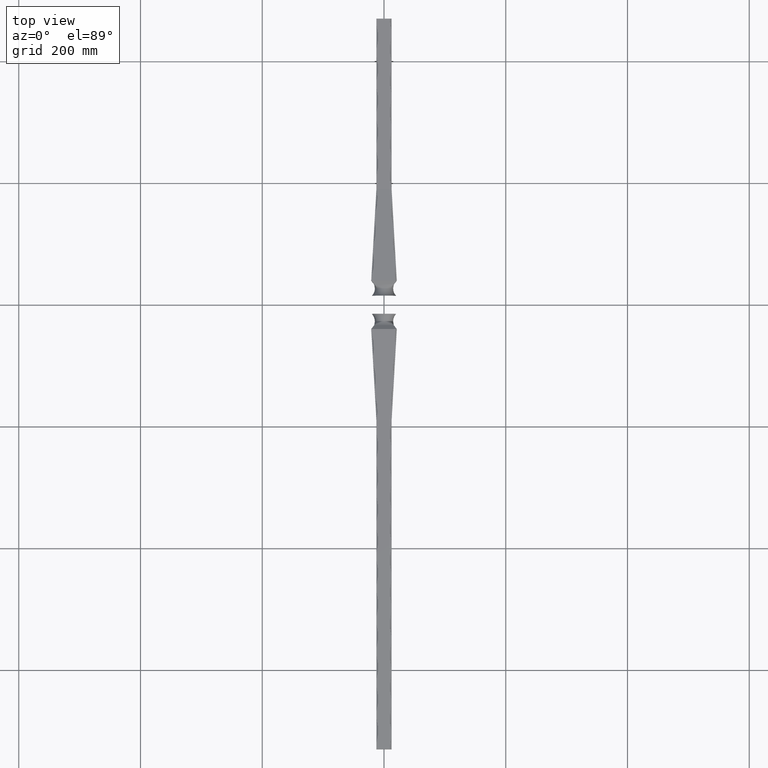
[diagram: clean part render]
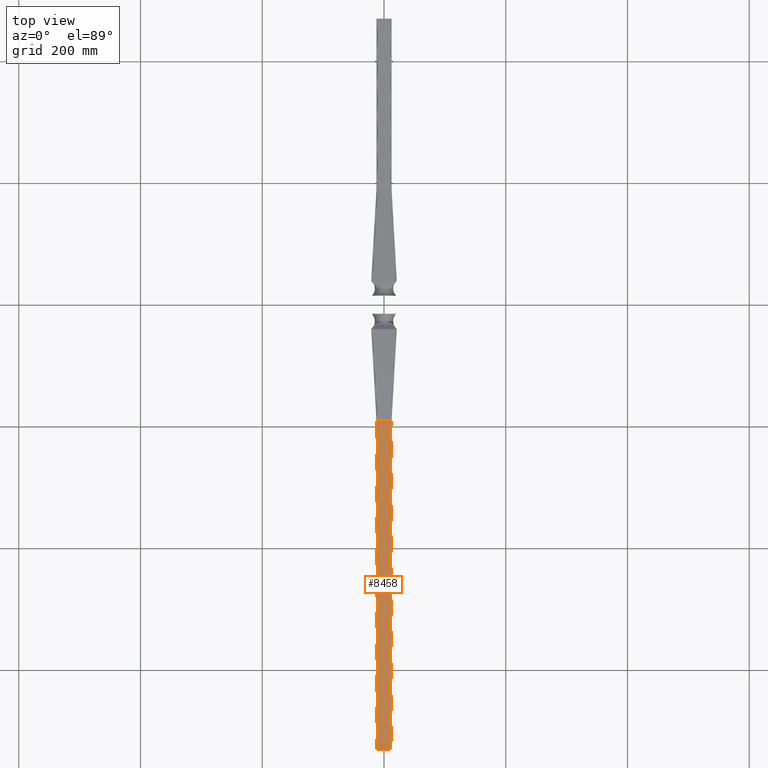
[diagram: same view with one face highlighted and labeled with its STEP entity id]
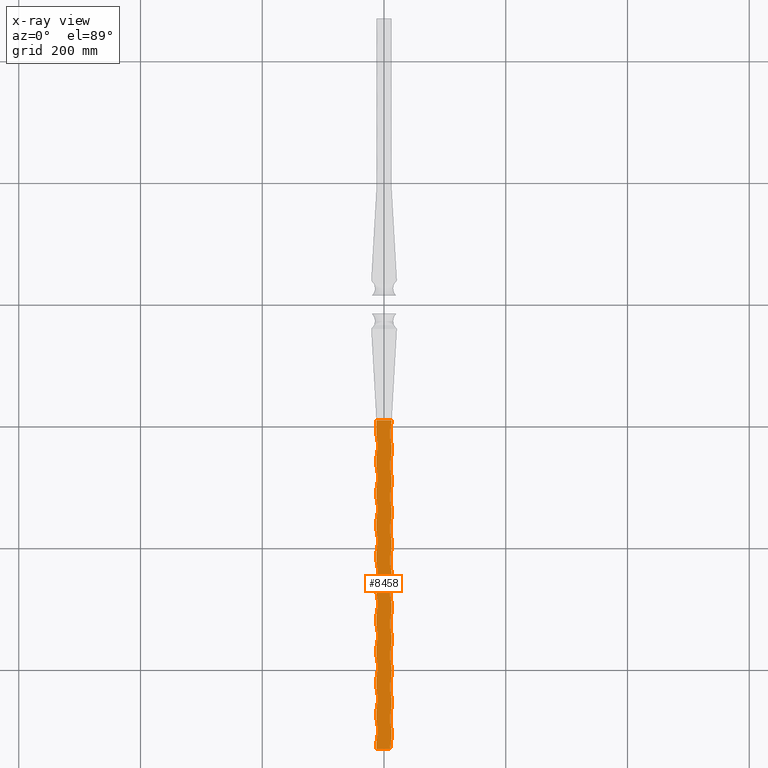
[diagram: x-ray of the same camera — body ghosted, the highlighted face saturated]
A machine part, top view. The second image highlights one B-rep face of the part: STEP entity #8458.
The next image is the same camera in x-ray: the body ghosted, the highlighted face saturated — about 0% of this face is hidden behind the body in this view.
In plain terms, the highlighted planar face has unit normal (-0, 0, -1).
Its self-contained STEP definition (entity closure, byte-faithful):
#9 = LINE ( 'NONE', #11752, #6208 ) ;
#26 = CARTESIAN_POINT ( 'NONE',  ( -12.49999999999999645, -720.0000000000000000, 12.50000000000000533 ) ) ;
#100 = EDGE_CURVE ( 'NONE', #15954, #1860, #9966, .T. ) ;
#148 = CARTESIAN_POINT ( 'NONE',  ( 12.50000000000001776, -712.0000000000000000, 12.49999999999998046 ) ) ;
#187 = LINE ( 'NONE', #9151, #12986 ) ;
#212 = EDGE_CURVE ( 'NONE', #6256, #5781, #1397, .T. ) ;
#225 = EDGE_CURVE ( 'NONE', #3206, #9755, #11658, .T. ) ;
#341 = CARTESIAN_POINT ( 'NONE',  ( 91.25000000000005684, -472.0000000000000000, 12.49999999999999822 ) ) ;
#354 = VERTEX_POINT ( 'NONE', #2924 ) ;
#394 = DIRECTION ( 'NONE',  ( -0.000000000000000000, 1.000000000000000000, -0.000000000000000000 ) ) ;
#421 = CARTESIAN_POINT ( 'NONE',  ( -12.50000000000000000, -1965.355339059327207, 12.50000000000000000 ) ) ;
#537 = VERTEX_POINT ( 'NONE', #1294 ) ;
#561 = VECTOR ( 'NONE', #5004, 1000.000000000000000 ) ;
#575 = LINE ( 'NONE', #11603, #9081 ) ;
#584 = DIRECTION ( 'NONE',  ( -0.000000000000000000, -0.000000000000000000, -1.000000000000000000 ) ) ;
#655 = CARTESIAN_POINT ( 'NONE',  ( 91.25000000000005684, -263.9999999999999432, 12.50000000000000000 ) ) ;
#702 = CIRCLE ( 'NONE', #1863, 81.24999999999997158 ) ;
#706 = DIRECTION ( 'NONE',  ( -1.000000000000000000, 0.000000000000000000, 0.000000000000000000 ) ) ;
#788 = DIRECTION ( 'NONE',  ( 0.000000000000000000, 0.000000000000000000, 1.000000000000000000 ) ) ;
#837 = LINE ( 'NONE', #1064, #12235 ) ;
#852 = ORIENTED_EDGE ( 'NONE', *, *, #14087, .T. ) ;
#859 = CARTESIAN_POINT ( 'NONE',  ( -12.49999999999999645, -679.9999999999998863, 12.50000000000000533 ) ) ;
#893 = DIRECTION ( 'NONE',  ( -1.000000000000000000, 3.416070845000482148E-15, 0.000000000000000000 ) ) ;
#906 = CARTESIAN_POINT ( 'NONE',  ( 12.50000000000000000, -1965.355339059327207, 12.50000000000000000 ) ) ;
#935 = ORIENTED_EDGE ( 'NONE', *, *, #7522, .T. ) ;
#942 = CARTESIAN_POINT ( 'NONE',  ( -12.49999999999999645, -408.0000000000003979, 12.49999999999991651 ) ) ;
#969 = ORIENTED_EDGE ( 'NONE', *, *, #6328, .T. ) ;
#1046 = CARTESIAN_POINT ( 'NONE',  ( 12.50000000000000000, -1965.355339059327207, 12.50000000000000000 ) ) ;
#1064 = CARTESIAN_POINT ( 'NONE',  ( 12.50000000000000000, -1965.355339059327207, 12.50000000000000000 ) ) ;
#1082 = CARTESIAN_POINT ( 'NONE',  ( 12.50000000000000000, -1965.355339059327207, 12.50000000000000000 ) ) ;
#1155 = VERTEX_POINT ( 'NONE', #1597 ) ;
#1159 = LINE ( 'NONE', #7810, #7934 ) ;
#1164 = DIRECTION ( 'NONE',  ( 1.000000000000000000, 0.000000000000000000, 0.000000000000000000 ) ) ;
#1219 = VERTEX_POINT ( 'NONE', #8890 ) ;
#1238 = ORIENTED_EDGE ( 'NONE', *, *, #2023, .T. ) ;
#1244 = CIRCLE ( 'NONE', #8678, 81.24999999999998579 ) ;
#1294 = CARTESIAN_POINT ( 'NONE',  ( -12.49999999999999467, -190.0000000000000853, 12.50000000000001243 ) ) ;
#1305 = VECTOR ( 'NONE', #3543, 1000.000000000000000 ) ;
#1309 = VERTEX_POINT ( 'NONE', #10400 ) ;
#1397 = LINE ( 'NONE', #11718, #14730 ) ;
#1454 = VERTEX_POINT ( 'NONE', #8063 ) ;
#1460 = CARTESIAN_POINT ( 'NONE',  ( -91.24999999999984368, -284.0000000000000000, 12.49999999999988631 ) ) ;
#1469 = CARTESIAN_POINT ( 'NONE',  ( 91.25000000000005684, -679.9999999999998863, 12.49999999999999645 ) ) ;
#1498 = VERTEX_POINT ( 'NONE', #11832 ) ;
#1503 = AXIS2_PLACEMENT_3D ( 'NONE', #7779, #584, #2966 ) ;
#1516 = DIRECTION ( 'NONE',  ( -1.000000000000000000, 0.000000000000000000, 0.000000000000000000 ) ) ;
#1531 = FACE_OUTER_BOUND ( 'NONE', #1778, .T. ) ;
#1549 = CARTESIAN_POINT ( 'NONE',  ( 12.50000000000000000, -1965.355339059327207, 12.50000000000000000 ) ) ;
#1574 = DIRECTION ( 'NONE',  ( -1.000000000000000000, 0.000000000000000000, 0.000000000000000000 ) ) ;
#1597 = CARTESIAN_POINT ( 'NONE',  ( 12.50000000000000178, -492.0000000000000000, 12.49999999999999822 ) ) ;
#1640 = CARTESIAN_POINT ( 'NONE',  ( 12.49999999999999645, -659.9999999999998863, 12.49999999999999645 ) ) ;
#1654 = EDGE_CURVE ( 'NONE', #5970, #6256, #7189, .T. ) ;
#1728 = AXIS2_PLACEMENT_3D ( 'NONE', #15685, #15788, #9497 ) ;
#1778 = EDGE_LOOP ( 'NONE', ( #13399, #5163, #4664, #12515, #10181, #15892, #11164, #3469, #3205, #4182, #3637, #11341, #6555, #14804, #7795, #15497, #10124, #15922, #3228, #2211, #15891, #8675, #14649, #4051, #12684, #2645, #10296, #935, #12134, #7915, #2659, #3155, #1238, #11791, #10194, #969, #7659, #3159, #13979, #11270, #852, #13832, #9150, #7085, #12657 ) ) ;
#1849 = CARTESIAN_POINT ( 'NONE',  ( 12.50000000000000355, -284.0000000000000000, 12.50000000000000000 ) ) ;
#1855 = DIRECTION ( 'NONE',  ( -0.000000000000000000, 1.000000000000000000, -0.000000000000000000 ) ) ;
#1860 = VERTEX_POINT ( 'NONE', #14282 ) ;
#1863 = AXIS2_PLACEMENT_3D ( 'NONE', #3092, #10609, #15554 ) ;
#1914 = EDGE_CURVE ( 'NONE', #12007, #11472, #8165, .T. ) ;
#1923 = VERTEX_POINT ( 'NONE', #15779 ) ;
#1936 = VECTOR ( 'NONE', #9509, 1000.000000000000000 ) ;
#1995 = CARTESIAN_POINT ( 'NONE',  ( 12.50000000000000000, -700.0000000000000000, 12.49999999999999645 ) ) ;
#2023 = EDGE_CURVE ( 'NONE', #15016, #5970, #187, .T. ) ;
#2211 = ORIENTED_EDGE ( 'NONE', *, *, #13486, .F. ) ;
#2301 = CARTESIAN_POINT ( 'NONE',  ( -12.49999999999999645, -252.0000000000006253, 12.49999999999987033 ) ) ;
#2315 = VERTEX_POINT ( 'NONE', #10603 ) ;
#2348 = CIRCLE ( 'NONE', #15141, 81.24999999999998579 ) ;
#2380 = CARTESIAN_POINT ( 'NONE',  ( -12.49999999999987743, -263.9999999999999432, 12.49999999999988631 ) ) ;
#2485 = CIRCLE ( 'NONE', #15048, 81.25000000000005684 ) ;
#2487 = CARTESIAN_POINT ( 'NONE',  ( 12.50000000000000000, -1965.355339059327207, 12.50000000000000000 ) ) ;
#2645 = ORIENTED_EDGE ( 'NONE', *, *, #4143, .T. ) ;
#2650 = DIRECTION ( 'NONE',  ( -1.000000000000000000, 0.000000000000000000, 0.000000000000000000 ) ) ;
#2659 = ORIENTED_EDGE ( 'NONE', *, *, #13690, .T. ) ;
#2714 = VECTOR ( 'NONE', #394, 1000.000000000000000 ) ;
#2725 = EDGE_CURVE ( 'NONE', #10695, #14837, #4698, .T. ) ;
#2726 = CIRCLE ( 'NONE', #7399, 81.24999999999998579 ) ;
#2766 = CARTESIAN_POINT ( 'NONE',  ( 12.50000000000000000, -647.9999999999998863, 12.49999999999999645 ) ) ;
#2815 = CIRCLE ( 'NONE', #10432, 81.24999999999997158 ) ;
#2913 = EDGE_CURVE ( 'NONE', #5672, #1454, #7181, .T. ) ;
#2924 = CARTESIAN_POINT ( 'NONE',  ( -12.49999999999999645, -616.0000000000001137, 12.49999999999997691 ) ) ;
#2946 = CIRCLE ( 'NONE', #6993, 81.25000000000005684 ) ;
#2966 = DIRECTION ( 'NONE',  ( -1.000000000000000000, 0.000000000000000000, 0.000000000000000000 ) ) ;
#3017 = EDGE_CURVE ( 'NONE', #14874, #1309, #1159, .T. ) ;
#3024 = CARTESIAN_POINT ( 'NONE',  ( 12.50000000000000355, -335.9999999999999432, 12.50000000000000000 ) ) ;
#3092 = CARTESIAN_POINT ( 'NONE',  ( -91.24999999999990052, -492.0000000000000000, 12.49999999999994493 ) ) ;
#3155 = ORIENTED_EDGE ( 'NONE', *, *, #13999, .T. ) ;
#3159 = ORIENTED_EDGE ( 'NONE', *, *, #15953, .T. ) ;
#3205 = ORIENTED_EDGE ( 'NONE', *, *, #14700, .F. ) ;
#3206 = VERTEX_POINT ( 'NONE', #10521 ) ;
#3209 = CIRCLE ( 'NONE', #5907, 81.25000000000005684 ) ;
#3228 = ORIENTED_EDGE ( 'NONE', *, *, #13501, .F. ) ;
#3301 = CARTESIAN_POINT ( 'NONE',  ( -12.49999999999989164, -315.9999999999999432, 12.49999999999990052 ) ) ;
#3365 = AXIS2_PLACEMENT_3D ( 'NONE', #15978, #4754, #14697 ) ;
#3396 = LINE ( 'NONE', #11671, #6667 ) ;
#3469 = ORIENTED_EDGE ( 'NONE', *, *, #4426, .F. ) ;
#3484 = CARTESIAN_POINT ( 'NONE',  ( -12.50000000000000000, -1965.355339059327207, 12.50000000000000000 ) ) ;
#3504 = CIRCLE ( 'NONE', #12364, 81.25000000000005684 ) ;
#3538 = VERTEX_POINT ( 'NONE', #9033 ) ;
#3543 = DIRECTION ( 'NONE',  ( -0.000000000000000000, 1.000000000000000000, -0.000000000000000000 ) ) ;
#3594 = CARTESIAN_POINT ( 'NONE',  ( 12.50000000000000178, -387.9999999999999432, 12.49999999999999822 ) ) ;
#3609 = LINE ( 'NONE', #15952, #4613 ) ;
#3622 = LINE ( 'NONE', #2487, #6513 ) ;
#3637 = ORIENTED_EDGE ( 'NONE', *, *, #12797, .F. ) ;
#3657 = LINE ( 'NONE', #8833, #561 ) ;
#3753 = VECTOR ( 'NONE', #9028, 1000.000000000000000 ) ;
#3775 = AXIS2_PLACEMENT_3D ( 'NONE', #14379, #4470, #6987 ) ;
#3943 = CARTESIAN_POINT ( 'NONE',  ( -12.49999999999990763, -367.9999999999999432, 12.49999999999991651 ) ) ;
#4012 = DIRECTION ( 'NONE',  ( 0.000000000000000000, 0.000000000000000000, 1.000000000000000000 ) ) ;
#4022 = VERTEX_POINT ( 'NONE', #942 ) ;
#4051 = ORIENTED_EDGE ( 'NONE', *, *, #9855, .T. ) ;
#4143 = EDGE_CURVE ( 'NONE', #15390, #14874, #8136, .T. ) ;
#4182 = ORIENTED_EDGE ( 'NONE', *, *, #225, .F. ) ;
#4322 = EDGE_CURVE ( 'NONE', #4022, #10314, #6770, .T. ) ;
#4426 = EDGE_CURVE ( 'NONE', #2315, #4022, #10846, .T. ) ;
#4470 = DIRECTION ( 'NONE',  ( 0.000000000000000000, 0.000000000000000000, 1.000000000000000000 ) ) ;
#4613 = VECTOR ( 'NONE', #1164, 1000.000000000000000 ) ;
#4645 = CARTESIAN_POINT ( 'NONE',  ( -91.24999999999991473, -543.9999999999998863, 12.49999999999996092 ) ) ;
#4656 = AXIS2_PLACEMENT_3D ( 'NONE', #4645, #4747, #7101 ) ;
#4664 = ORIENTED_EDGE ( 'NONE', *, *, #12555, .F. ) ;
#4698 = LINE ( 'NONE', #10178, #2714 ) ;
#4715 = EDGE_CURVE ( 'NONE', #6507, #15578, #3657, .T. ) ;
#4747 = DIRECTION ( 'NONE',  ( 0.000000000000000000, 0.000000000000000000, 1.000000000000000000 ) ) ;
#4754 = DIRECTION ( 'NONE',  ( -0.000000000000000000, -0.000000000000000000, -1.000000000000000000 ) ) ;
#5004 = DIRECTION ( 'NONE',  ( -0.000000000000000000, 1.000000000000000000, -0.000000000000000000 ) ) ;
#5128 = CARTESIAN_POINT ( 'NONE',  ( -12.49999999999999645, -512.0000000000003411, 12.49999999999994493 ) ) ;
#5163 = ORIENTED_EDGE ( 'NONE', *, *, #2725, .F. ) ;
#5168 = DIRECTION ( 'NONE',  ( -0.000000000000000000, 1.000000000000000000, -0.000000000000000000 ) ) ;
#5210 = VERTEX_POINT ( 'NONE', #9779 ) ;
#5257 = CARTESIAN_POINT ( 'NONE',  ( 12.50000000000000000, -1965.355339059327207, 12.50000000000000000 ) ) ;
#5289 = DIRECTION ( 'NONE',  ( -0.000000000000000000, 1.000000000000000000, -0.000000000000000000 ) ) ;
#5299 = VERTEX_POINT ( 'NONE', #9880 ) ;
#5381 = LINE ( 'NONE', #8981, #13652 ) ;
#5439 = EDGE_CURVE ( 'NONE', #12546, #12314, #575, .T. ) ;
#5464 = CIRCLE ( 'NONE', #6435, 81.24999999999998579 ) ;
#5526 = DIRECTION ( 'NONE',  ( -1.000000000000000000, 0.000000000000000000, 0.000000000000000000 ) ) ;
#5558 = AXIS2_PLACEMENT_3D ( 'NONE', #1046, #11127, #7310 ) ;
#5571 = VERTEX_POINT ( 'NONE', #15423 ) ;
#5657 = DIRECTION ( 'NONE',  ( -0.000000000000000000, 1.000000000000000000, -0.000000000000000000 ) ) ;
#5672 = VERTEX_POINT ( 'NONE', #859 ) ;
#5763 = EDGE_CURVE ( 'NONE', #15159, #3538, #837, .T. ) ;
#5781 = VERTEX_POINT ( 'NONE', #3594 ) ;
#5796 = LINE ( 'NONE', #11983, #1936 ) ;
#5901 = CIRCLE ( 'NONE', #8081, 81.24999999999998579 ) ;
#5907 = AXIS2_PLACEMENT_3D ( 'NONE', #341, #15087, #10291 ) ;
#5970 = VERTEX_POINT ( 'NONE', #10837 ) ;
#6040 = VECTOR ( 'NONE', #9748, 1000.000000000000000 ) ;
#6061 = EDGE_CURVE ( 'NONE', #1498, #14385, #9338, .T. ) ;
#6115 = EDGE_CURVE ( 'NONE', #11472, #6630, #11835, .T. ) ;
#6208 = VECTOR ( 'NONE', #5657, 1000.000000000000000 ) ;
#6256 = VERTEX_POINT ( 'NONE', #9134 ) ;
#6328 = EDGE_CURVE ( 'NONE', #5781, #10500, #2946, .T. ) ;
#6415 = VECTOR ( 'NONE', #14146, 1000.000000000000000 ) ;
#6435 = AXIS2_PLACEMENT_3D ( 'NONE', #15008, #11345, #7523 ) ;
#6507 = VERTEX_POINT ( 'NONE', #3301 ) ;
#6508 = DIRECTION ( 'NONE',  ( -0.000000000000000000, 1.000000000000000000, -0.000000000000000000 ) ) ;
#6513 = VECTOR ( 'NONE', #7505, 1000.000000000000000 ) ;
#6555 = ORIENTED_EDGE ( 'NONE', *, *, #1914, .F. ) ;
#6630 = VERTEX_POINT ( 'NONE', #5128 ) ;
#6659 = CIRCLE ( 'NONE', #10067, 81.25000000000005684 ) ;
#6667 = VECTOR ( 'NONE', #10713, 1000.000000000000000 ) ;
#6763 = DIRECTION ( 'NONE',  ( -0.000000000000000000, -0.000000000000000000, -1.000000000000000000 ) ) ;
#6768 = CARTESIAN_POINT ( 'NONE',  ( -12.49999999999995204, -523.9999999999998863, 12.49999999999996092 ) ) ;
#6770 = CIRCLE ( 'NONE', #3775, 81.25000000000000000 ) ;
#6892 = CARTESIAN_POINT ( 'NONE',  ( -12.49999999999999645, -356.0000000000004547, 12.49999999999990052 ) ) ;
#6927 = CIRCLE ( 'NONE', #1728, 81.25000000000005684 ) ;
#6987 = DIRECTION ( 'NONE',  ( -1.000000000000000000, 0.000000000000000000, 0.000000000000000000 ) ) ;
#6993 = AXIS2_PLACEMENT_3D ( 'NONE', #8176, #11723, #706 ) ;
#6997 = EDGE_CURVE ( 'NONE', #1923, #354, #9, .T. ) ;
#7085 = ORIENTED_EDGE ( 'NONE', *, *, #11318, .T. ) ;
#7101 = DIRECTION ( 'NONE',  ( -1.000000000000000000, 2.732856676000385876E-15, 0.000000000000000000 ) ) ;
#7106 = EDGE_CURVE ( 'NONE', #354, #1219, #5464, .T. ) ;
#7175 = CARTESIAN_POINT ( 'NONE',  ( -12.49999999999999645, -460.0000000000003411, 12.49999999999993072 ) ) ;
#7181 = LINE ( 'NONE', #12556, #13905 ) ;
#7189 = CIRCLE ( 'NONE', #1503, 81.25000000000005684 ) ;
#7310 = DIRECTION ( 'NONE',  ( -1.000000000000000000, 0.000000000000000000, 0.000000000000000000 ) ) ;
#7395 = DIRECTION ( 'NONE',  ( -0.000000000000000000, 1.000000000000000000, -0.000000000000000000 ) ) ;
#7399 = AXIS2_PLACEMENT_3D ( 'NONE', #8491, #14687, #8395 ) ;
#7447 = EDGE_CURVE ( 'NONE', #14837, #5210, #2726, .T. ) ;
#7452 = DIRECTION ( 'NONE',  ( -0.000000000000000000, -0.000000000000000000, -1.000000000000000000 ) ) ;
#7489 = EDGE_CURVE ( 'NONE', #5571, #15954, #9107, .T. ) ;
#7505 = DIRECTION ( 'NONE',  ( -0.000000000000000000, 1.000000000000000000, -0.000000000000000000 ) ) ;
#7522 = EDGE_CURVE ( 'NONE', #1309, #15159, #8909, .T. ) ;
#7523 = DIRECTION ( 'NONE',  ( -1.000000000000000000, 0.000000000000000000, 0.000000000000000000 ) ) ;
#7622 = AXIS2_PLACEMENT_3D ( 'NONE', #14840, #7452, #2650 ) ;
#7659 = ORIENTED_EDGE ( 'NONE', *, *, #11625, .T. ) ;
#7779 = CARTESIAN_POINT ( 'NONE',  ( 91.25000000000005684, -419.9999999999999432, 12.49999999999999822 ) ) ;
#7795 = ORIENTED_EDGE ( 'NONE', *, *, #7106, .F. ) ;
#7801 = DIRECTION ( 'NONE',  ( -0.000000000000000000, 1.000000000000000000, -0.000000000000000000 ) ) ;
#7810 = CARTESIAN_POINT ( 'NONE',  ( 12.50000000000000000, -1965.355339059327207, 12.50000000000000000 ) ) ;
#7894 = EDGE_CURVE ( 'NONE', #8299, #6507, #2348, .T. ) ;
#7915 = ORIENTED_EDGE ( 'NONE', *, *, #11206, .T. ) ;
#7934 = VECTOR ( 'NONE', #14010, 1000.000000000000000 ) ;
#7942 = CARTESIAN_POINT ( 'NONE',  ( -12.50000000000000000, -1965.355339059327207, 12.50000000000000000 ) ) ;
#8002 = CARTESIAN_POINT ( 'NONE',  ( 12.50000000000000000, -190.0000000000000000, 12.50000000000000000 ) ) ;
#8033 = EDGE_CURVE ( 'NONE', #10594, #12546, #3504, .T. ) ;
#8063 = CARTESIAN_POINT ( 'NONE',  ( -12.49999999999999645, -668.0000000000000000, 12.49999999999999112 ) ) ;
#8081 = AXIS2_PLACEMENT_3D ( 'NONE', #11802, #788, #893 ) ;
#8136 = CIRCLE ( 'NONE', #7622, 81.25000000000005684 ) ;
#8165 = CIRCLE ( 'NONE', #4656, 81.24999999999998579 ) ;
#8176 = CARTESIAN_POINT ( 'NONE',  ( 91.25000000000005684, -367.9999999999999432, 12.49999999999999822 ) ) ;
#8299 = VERTEX_POINT ( 'NONE', #6892 ) ;
#8395 = DIRECTION ( 'NONE',  ( -1.000000000000000000, 0.000000000000000000, 0.000000000000000000 ) ) ;
#8424 = CARTESIAN_POINT ( 'NONE',  ( 12.49999999999999645, -191.9999999999999432, 12.50000000000000000 ) ) ;
#8451 = LINE ( 'NONE', #5257, #13282 ) ;
#8458 = ADVANCED_FACE ( 'NONE', ( #1531 ), #8551, .F. ) ;
#8491 = CARTESIAN_POINT ( 'NONE',  ( -91.24999999999982947, -231.9999999999999716, 12.49999999999987033 ) ) ;
#8551 = PLANE ( 'NONE',  #5558 ) ;
#8587 = DIRECTION ( 'NONE',  ( -0.000000000000000000, -0.000000000000000000, -1.000000000000000000 ) ) ;
#8675 = ORIENTED_EDGE ( 'NONE', *, *, #8033, .T. ) ;
#8678 = AXIS2_PLACEMENT_3D ( 'NONE', #10105, #12638, #1516 ) ;
#8774 = DIRECTION ( 'NONE',  ( -1.000000000000000000, 0.000000000000000000, 0.000000000000000000 ) ) ;
#8833 = CARTESIAN_POINT ( 'NONE',  ( -12.50000000000000000, -1965.355339059327207, 12.50000000000000000 ) ) ;
#8869 = DIRECTION ( 'NONE',  ( -0.000000000000000000, 1.000000000000000000, -0.000000000000000000 ) ) ;
#8890 = CARTESIAN_POINT ( 'NONE',  ( -12.49999999999996803, -576.0000000000000000, 12.49999999999997691 ) ) ;
#8909 = CIRCLE ( 'NONE', #13796, 81.25000000000005684 ) ;
#8981 = CARTESIAN_POINT ( 'NONE',  ( 12.50000000000000000, -190.0000000000000000, 12.50000000000000000 ) ) ;
#9028 = DIRECTION ( 'NONE',  ( -0.000000000000000000, 1.000000000000000000, -0.000000000000000000 ) ) ;
#9033 = CARTESIAN_POINT ( 'NONE',  ( 12.50000000000000178, -543.9999999999998863, 12.49999999999999822 ) ) ;
#9081 = VECTOR ( 'NONE', #5289, 1000.000000000000000 ) ;
#9107 = LINE ( 'NONE', #1082, #16041 ) ;
#9134 = CARTESIAN_POINT ( 'NONE',  ( 12.49999999999999645, -399.9999999999998863, 12.49999999999999822 ) ) ;
#9150 = ORIENTED_EDGE ( 'NONE', *, *, #12728, .T. ) ;
#9151 = CARTESIAN_POINT ( 'NONE',  ( 12.50000000000000000, -1965.355339059327207, 12.50000000000000000 ) ) ;
#9245 = CARTESIAN_POINT ( 'NONE',  ( -12.50000000000000000, -1965.355339059327207, 12.50000000000000000 ) ) ;
#9338 = CIRCLE ( 'NONE', #3365, 81.25000000000005684 ) ;
#9404 = LINE ( 'NONE', #7942, #9946 ) ;
#9459 = DIRECTION ( 'NONE',  ( -1.000000000000000000, 3.416070845000482148E-15, 0.000000000000000000 ) ) ;
#9497 = DIRECTION ( 'NONE',  ( -1.000000000000000000, 0.000000000000000000, 0.000000000000000000 ) ) ;
#9509 = DIRECTION ( 'NONE',  ( -0.000000000000000000, 1.000000000000000000, -0.000000000000000000 ) ) ;
#9605 = AXIS2_PLACEMENT_3D ( 'NONE', #13670, #4012, #12653 ) ;
#9662 = EDGE_CURVE ( 'NONE', #13059, #15390, #11562, .T. ) ;
#9682 = EDGE_CURVE ( 'NONE', #5210, #537, #5796, .T. ) ;
#9748 = DIRECTION ( 'NONE',  ( -0.000000000000000000, 1.000000000000000000, -0.000000000000000000 ) ) ;
#9755 = VERTEX_POINT ( 'NONE', #7175 ) ;
#9779 = CARTESIAN_POINT ( 'NONE',  ( -12.49999999999986144, -211.9999999999999716, 12.49999999999987033 ) ) ;
#9855 = EDGE_CURVE ( 'NONE', #12314, #13059, #2485, .T. ) ;
#9871 = EDGE_CURVE ( 'NONE', #1454, #1923, #11168, .T. ) ;
#9880 = CARTESIAN_POINT ( 'NONE',  ( 12.49999999999999645, -503.9999999999998863, 12.49999999999999822 ) ) ;
#9946 = VECTOR ( 'NONE', #6508, 1000.000000000000000 ) ;
#9966 = CIRCLE ( 'NONE', #15800, 81.25000000000005684 ) ;
#10067 = AXIS2_PLACEMENT_3D ( 'NONE', #14200, #12904, #5526 ) ;
#10105 = CARTESIAN_POINT ( 'NONE',  ( -91.24999999999997158, -700.0000000000000000, 12.50000000000000533 ) ) ;
#10124 = ORIENTED_EDGE ( 'NONE', *, *, #9871, .F. ) ;
#10148 = DIRECTION ( 'NONE',  ( -1.000000000000000000, 0.000000000000000000, 0.000000000000000000 ) ) ;
#10178 = CARTESIAN_POINT ( 'NONE',  ( -12.50000000000000000, -1965.355339059327207, 12.50000000000000000 ) ) ;
#10181 = ORIENTED_EDGE ( 'NONE', *, *, #7894, .F. ) ;
#10194 = ORIENTED_EDGE ( 'NONE', *, *, #212, .T. ) ;
#10291 = DIRECTION ( 'NONE',  ( -1.000000000000000000, 0.000000000000000000, 0.000000000000000000 ) ) ;
#10296 = ORIENTED_EDGE ( 'NONE', *, *, #3017, .T. ) ;
#10314 = VERTEX_POINT ( 'NONE', #3943 ) ;
#10400 = CARTESIAN_POINT ( 'NONE',  ( 12.50000000000000000, -596.0000000000000000, 12.49999999999999645 ) ) ;
#10432 = AXIS2_PLACEMENT_3D ( 'NONE', #1460, #11342, #10148 ) ;
#10500 = VERTEX_POINT ( 'NONE', #10709 ) ;
#10521 = CARTESIAN_POINT ( 'NONE',  ( -12.49999999999993605, -472.0000000000000000, 12.49999999999994493 ) ) ;
#10594 = VERTEX_POINT ( 'NONE', #11950 ) ;
#10603 = CARTESIAN_POINT ( 'NONE',  ( -12.49999999999992184, -419.9999999999999432, 12.49999999999993072 ) ) ;
#10609 = DIRECTION ( 'NONE',  ( 0.000000000000000000, 0.000000000000000000, 1.000000000000000000 ) ) ;
#10695 = VERTEX_POINT ( 'NONE', #2380 ) ;
#10709 = CARTESIAN_POINT ( 'NONE',  ( 12.49999999999999645, -347.9999999999999432, 12.49999999999999822 ) ) ;
#10713 = DIRECTION ( 'NONE',  ( -0.000000000000000000, 1.000000000000000000, -0.000000000000000000 ) ) ;
#10776 = CARTESIAN_POINT ( 'NONE',  ( -12.49999999999999645, -304.0000000000005116, 12.49999999999988631 ) ) ;
#10837 = CARTESIAN_POINT ( 'NONE',  ( 12.50000000000000178, -439.9999999999999432, 12.49999999999999822 ) ) ;
#10846 = LINE ( 'NONE', #11323, #15844 ) ;
#10902 = DIRECTION ( 'NONE',  ( -0.000000000000000000, -0.000000000000000000, -1.000000000000000000 ) ) ;
#10941 = VERTEX_POINT ( 'NONE', #11255 ) ;
#11048 = DIRECTION ( 'NONE',  ( -1.000000000000000000, 0.000000000000000000, 0.000000000000000000 ) ) ;
#11127 = DIRECTION ( 'NONE',  ( -0.000000000000000000, 0.000000000000000000, -1.000000000000000000 ) ) ;
#11164 = ORIENTED_EDGE ( 'NONE', *, *, #4322, .F. ) ;
#11165 = DIRECTION ( 'NONE',  ( -0.000000000000000000, 1.000000000000000000, -0.000000000000000000 ) ) ;
#11168 = CIRCLE ( 'NONE', #9605, 81.24999999999997158 ) ;
#11206 = EDGE_CURVE ( 'NONE', #3538, #5299, #6927, .T. ) ;
#11255 = CARTESIAN_POINT ( 'NONE',  ( -12.50000000000000000, -730.0000000000000000, 12.50000000000000000 ) ) ;
#11270 = ORIENTED_EDGE ( 'NONE', *, *, #100, .T. ) ;
#11318 = EDGE_CURVE ( 'NONE', #11879, #537, #5381, .T. ) ;
#11323 = CARTESIAN_POINT ( 'NONE',  ( -12.50000000000000000, -1965.355339059327207, 12.50000000000000000 ) ) ;
#11341 = ORIENTED_EDGE ( 'NONE', *, *, #6115, .F. ) ;
#11342 = DIRECTION ( 'NONE',  ( 0.000000000000000000, 0.000000000000000000, 1.000000000000000000 ) ) ;
#11345 = DIRECTION ( 'NONE',  ( 0.000000000000000000, 0.000000000000000000, 1.000000000000000000 ) ) ;
#11403 = DIRECTION ( 'NONE',  ( -0.000000000000000000, -0.000000000000000000, -1.000000000000000000 ) ) ;
#11438 = CARTESIAN_POINT ( 'NONE',  ( 12.49999999999999645, -451.9999999999999432, 12.49999999999999822 ) ) ;
#11445 = CARTESIAN_POINT ( 'NONE',  ( -12.50000000000000000, -1965.355339059327207, 12.50000000000000000 ) ) ;
#11472 = VERTEX_POINT ( 'NONE', #6768 ) ;
#11482 = DIRECTION ( 'NONE',  ( -0.000000000000000000, 1.000000000000000000, -0.000000000000000000 ) ) ;
#11562 = LINE ( 'NONE', #906, #1305 ) ;
#11603 = CARTESIAN_POINT ( 'NONE',  ( 12.50000000000000000, -1965.355339059327207, 12.50000000000000000 ) ) ;
#11609 = VERTEX_POINT ( 'NONE', #26 ) ;
#11625 = EDGE_CURVE ( 'NONE', #10500, #15197, #3622, .T. ) ;
#11658 = LINE ( 'NONE', #9245, #6415 ) ;
#11671 = CARTESIAN_POINT ( 'NONE',  ( 12.50000000000000000, -1965.355339059327207, 12.50000000000000000 ) ) ;
#11694 = LINE ( 'NONE', #11445, #11904 ) ;
#11718 = CARTESIAN_POINT ( 'NONE',  ( 12.50000000000000000, -1965.355339059327207, 12.50000000000000000 ) ) ;
#11723 = DIRECTION ( 'NONE',  ( -0.000000000000000000, -0.000000000000000000, -1.000000000000000000 ) ) ;
#11752 = CARTESIAN_POINT ( 'NONE',  ( -12.50000000000000000, -1965.355339059327207, 12.50000000000000000 ) ) ;
#11791 = ORIENTED_EDGE ( 'NONE', *, *, #1654, .T. ) ;
#11802 = CARTESIAN_POINT ( 'NONE',  ( -91.24999999999988631, -439.9999999999999432, 12.49999999999993072 ) ) ;
#11828 = CARTESIAN_POINT ( 'NONE',  ( -91.24999999999985789, -335.9999999999999432, 12.49999999999990052 ) ) ;
#11832 = CARTESIAN_POINT ( 'NONE',  ( 12.50000000000000355, -231.9999999999999716, 12.50000000000000000 ) ) ;
#11835 = LINE ( 'NONE', #3484, #6040 ) ;
#11879 = VERTEX_POINT ( 'NONE', #8002 ) ;
#11904 = VECTOR ( 'NONE', #8869, 1000.000000000000000 ) ;
#11950 = CARTESIAN_POINT ( 'NONE',  ( 10.02461911446645537, -730.0000000000000000, 12.50000000000000000 ) ) ;
#11983 = CARTESIAN_POINT ( 'NONE',  ( -12.50000000000000000, -1965.355339059327207, 12.50000000000000000 ) ) ;
#12007 = VERTEX_POINT ( 'NONE', #14467 ) ;
#12028 = EDGE_CURVE ( 'NONE', #10941, #10594, #3609, .T. ) ;
#12134 = ORIENTED_EDGE ( 'NONE', *, *, #5763, .T. ) ;
#12235 = VECTOR ( 'NONE', #12239, 1000.000000000000000 ) ;
#12239 = DIRECTION ( 'NONE',  ( -0.000000000000000000, 1.000000000000000000, -0.000000000000000000 ) ) ;
#12314 = VERTEX_POINT ( 'NONE', #1995 ) ;
#12364 = AXIS2_PLACEMENT_3D ( 'NONE', #14669, #10902, #11048 ) ;
#12448 = VECTOR ( 'NONE', #11482, 1000.000000000000000 ) ;
#12515 = ORIENTED_EDGE ( 'NONE', *, *, #4715, .F. ) ;
#12546 = VERTEX_POINT ( 'NONE', #148 ) ;
#12555 = EDGE_CURVE ( 'NONE', #15578, #10695, #2815, .T. ) ;
#12556 = CARTESIAN_POINT ( 'NONE',  ( -12.50000000000000000, -1965.355339059327207, 12.50000000000000000 ) ) ;
#12638 = DIRECTION ( 'NONE',  ( 0.000000000000000000, 0.000000000000000000, 1.000000000000000000 ) ) ;
#12653 = DIRECTION ( 'NONE',  ( -1.000000000000000000, 0.000000000000000000, 0.000000000000000000 ) ) ;
#12657 = ORIENTED_EDGE ( 'NONE', *, *, #9682, .F. ) ;
#12684 = ORIENTED_EDGE ( 'NONE', *, *, #9662, .T. ) ;
#12728 = EDGE_CURVE ( 'NONE', #14385, #11879, #8451, .T. ) ;
#12797 = EDGE_CURVE ( 'NONE', #6630, #3206, #702, .T. ) ;
#12851 = LINE ( 'NONE', #1549, #12448 ) ;
#12855 = CARTESIAN_POINT ( 'NONE',  ( 12.49999999999999645, -555.9999999999998863, 12.49999999999999645 ) ) ;
#12904 = DIRECTION ( 'NONE',  ( -0.000000000000000000, -0.000000000000000000, -1.000000000000000000 ) ) ;
#12920 = DIRECTION ( 'NONE',  ( -1.000000000000000000, 0.000000000000000000, 0.000000000000000000 ) ) ;
#12986 = VECTOR ( 'NONE', #7801, 1000.000000000000000 ) ;
#13059 = VERTEX_POINT ( 'NONE', #1640 ) ;
#13282 = VECTOR ( 'NONE', #15113, 1000.000000000000000 ) ;
#13399 = ORIENTED_EDGE ( 'NONE', *, *, #7447, .F. ) ;
#13417 = CARTESIAN_POINT ( 'NONE',  ( 12.49999999999999645, -607.9999999999998863, 12.49999999999999645 ) ) ;
#13486 = EDGE_CURVE ( 'NONE', #10941, #11609, #11694, .T. ) ;
#13492 = EDGE_CURVE ( 'NONE', #1219, #12007, #15747, .T. ) ;
#13501 = EDGE_CURVE ( 'NONE', #11609, #5672, #1244, .T. ) ;
#13594 = DIRECTION ( 'NONE',  ( -1.000000000000000000, 0.000000000000000000, 0.000000000000000000 ) ) ;
#13652 = VECTOR ( 'NONE', #1574, 1000.000000000000000 ) ;
#13670 = CARTESIAN_POINT ( 'NONE',  ( -91.24999999999995737, -647.9999999999998863, 12.49999999999999112 ) ) ;
#13690 = EDGE_CURVE ( 'NONE', #5299, #1155, #3396, .T. ) ;
#13796 = AXIS2_PLACEMENT_3D ( 'NONE', #14938, #8587, #13594 ) ;
#13832 = ORIENTED_EDGE ( 'NONE', *, *, #6061, .T. ) ;
#13905 = VECTOR ( 'NONE', #5168, 1000.000000000000000 ) ;
#13979 = ORIENTED_EDGE ( 'NONE', *, *, #7489, .T. ) ;
#13999 = EDGE_CURVE ( 'NONE', #1155, #15016, #3209, .T. ) ;
#14006 = EDGE_CURVE ( 'NONE', #10314, #8299, #9404, .T. ) ;
#14010 = DIRECTION ( 'NONE',  ( -0.000000000000000000, 1.000000000000000000, -0.000000000000000000 ) ) ;
#14087 = EDGE_CURVE ( 'NONE', #1860, #1498, #12851, .T. ) ;
#14146 = DIRECTION ( 'NONE',  ( -0.000000000000000000, 1.000000000000000000, -0.000000000000000000 ) ) ;
#14200 = CARTESIAN_POINT ( 'NONE',  ( 91.25000000000005684, -315.9999999999999432, 12.50000000000000000 ) ) ;
#14282 = CARTESIAN_POINT ( 'NONE',  ( 12.49999999999999645, -243.9999999999999432, 12.50000000000000000 ) ) ;
#14379 = CARTESIAN_POINT ( 'NONE',  ( -91.24999999999987210, -387.9999999999999432, 12.49999999999991651 ) ) ;
#14385 = VERTEX_POINT ( 'NONE', #8424 ) ;
#14467 = CARTESIAN_POINT ( 'NONE',  ( -12.49999999999999645, -564.0000000000001137, 12.49999999999996092 ) ) ;
#14649 = ORIENTED_EDGE ( 'NONE', *, *, #5439, .T. ) ;
#14669 = CARTESIAN_POINT ( 'NONE',  ( 91.25000000000008527, -732.0000000000000000, 12.49999999999998046 ) ) ;
#14687 = DIRECTION ( 'NONE',  ( 0.000000000000000000, 0.000000000000000000, 1.000000000000000000 ) ) ;
#14697 = DIRECTION ( 'NONE',  ( -1.000000000000000000, 0.000000000000000000, 0.000000000000000000 ) ) ;
#14700 = EDGE_CURVE ( 'NONE', #9755, #2315, #5901, .T. ) ;
#14730 = VECTOR ( 'NONE', #1855, 1000.000000000000000 ) ;
#14804 = ORIENTED_EDGE ( 'NONE', *, *, #13492, .F. ) ;
#14837 = VERTEX_POINT ( 'NONE', #2301 ) ;
#14840 = CARTESIAN_POINT ( 'NONE',  ( 91.25000000000005684, -627.9999999999998863, 12.49999999999999645 ) ) ;
#14874 = VERTEX_POINT ( 'NONE', #13417 ) ;
#14938 = CARTESIAN_POINT ( 'NONE',  ( 91.25000000000005684, -576.0000000000000000, 12.49999999999999645 ) ) ;
#15008 = CARTESIAN_POINT ( 'NONE',  ( -91.24999999999994316, -596.0000000000000000, 12.49999999999997691 ) ) ;
#15016 = VERTEX_POINT ( 'NONE', #11438 ) ;
#15048 = AXIS2_PLACEMENT_3D ( 'NONE', #1469, #11403, #8774 ) ;
#15087 = DIRECTION ( 'NONE',  ( -0.000000000000000000, -0.000000000000000000, -1.000000000000000000 ) ) ;
#15113 = DIRECTION ( 'NONE',  ( -0.000000000000000000, 1.000000000000000000, -0.000000000000000000 ) ) ;
#15141 = AXIS2_PLACEMENT_3D ( 'NONE', #11828, #15652, #9459 ) ;
#15159 = VERTEX_POINT ( 'NONE', #12855 ) ;
#15197 = VERTEX_POINT ( 'NONE', #3024 ) ;
#15390 = VERTEX_POINT ( 'NONE', #2766 ) ;
#15423 = CARTESIAN_POINT ( 'NONE',  ( 12.49999999999999645, -295.9999999999999432, 12.50000000000000000 ) ) ;
#15497 = ORIENTED_EDGE ( 'NONE', *, *, #6997, .F. ) ;
#15554 = DIRECTION ( 'NONE',  ( -1.000000000000000000, 0.000000000000000000, 0.000000000000000000 ) ) ;
#15578 = VERTEX_POINT ( 'NONE', #10776 ) ;
#15652 = DIRECTION ( 'NONE',  ( 0.000000000000000000, 0.000000000000000000, 1.000000000000000000 ) ) ;
#15685 = CARTESIAN_POINT ( 'NONE',  ( 91.25000000000005684, -523.9999999999998863, 12.49999999999999822 ) ) ;
#15747 = LINE ( 'NONE', #421, #3753 ) ;
#15779 = CARTESIAN_POINT ( 'NONE',  ( -12.49999999999998224, -627.9999999999998863, 12.49999999999999112 ) ) ;
#15788 = DIRECTION ( 'NONE',  ( -0.000000000000000000, -0.000000000000000000, -1.000000000000000000 ) ) ;
#15800 = AXIS2_PLACEMENT_3D ( 'NONE', #655, #6763, #12920 ) ;
#15844 = VECTOR ( 'NONE', #7395, 1000.000000000000000 ) ;
#15891 = ORIENTED_EDGE ( 'NONE', *, *, #12028, .T. ) ;
#15892 = ORIENTED_EDGE ( 'NONE', *, *, #14006, .F. ) ;
#15922 = ORIENTED_EDGE ( 'NONE', *, *, #2913, .F. ) ;
#15952 = CARTESIAN_POINT ( 'NONE',  ( 12.50000000000000000, -730.0000000000000000, 12.50000000000000000 ) ) ;
#15953 = EDGE_CURVE ( 'NONE', #15197, #5571, #6659, .T. ) ;
#15954 = VERTEX_POINT ( 'NONE', #1849 ) ;
#15978 = CARTESIAN_POINT ( 'NONE',  ( 91.25000000000005684, -211.9999999999999716, 12.50000000000000000 ) ) ;
#16041 = VECTOR ( 'NONE', #11165, 1000.000000000000000 ) ;